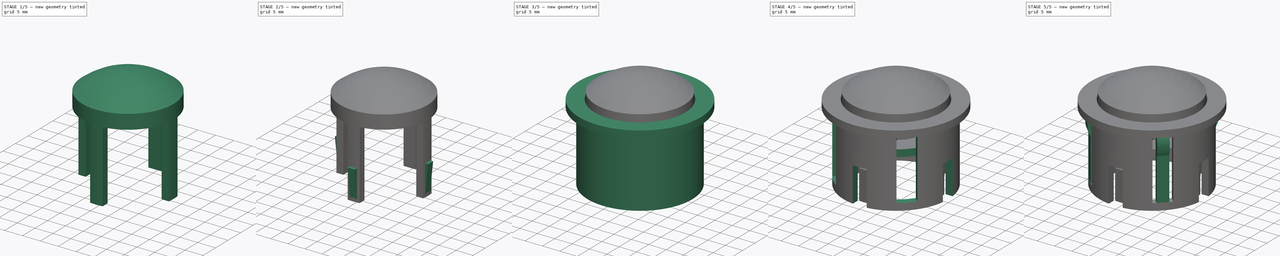
[diagram: build sequence overview — one tinted view per stage of 5, left to right]
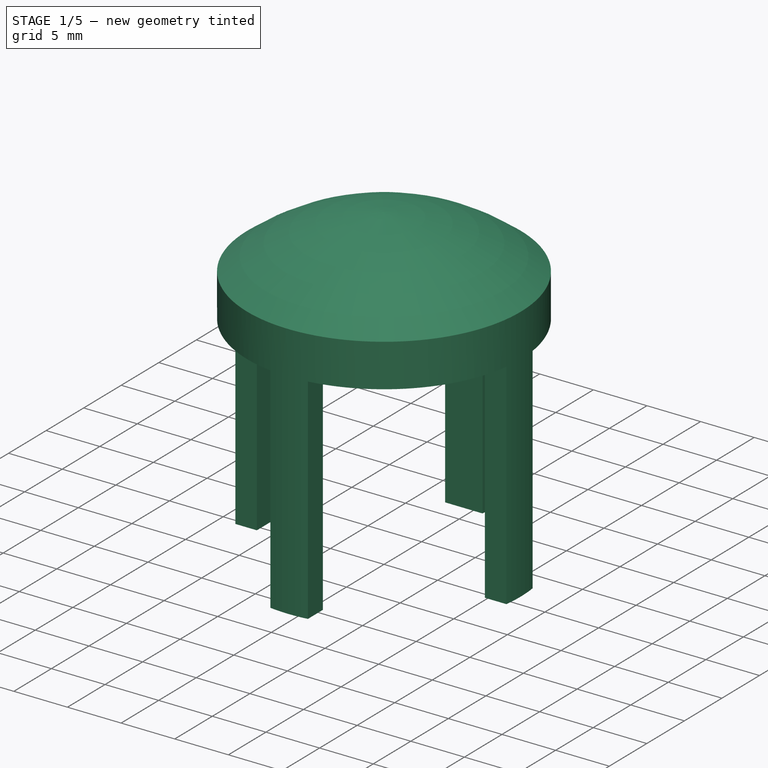
[diagram: stage 1 of 5 — iso view after this stage's code; geometry added in this stage tinted green]
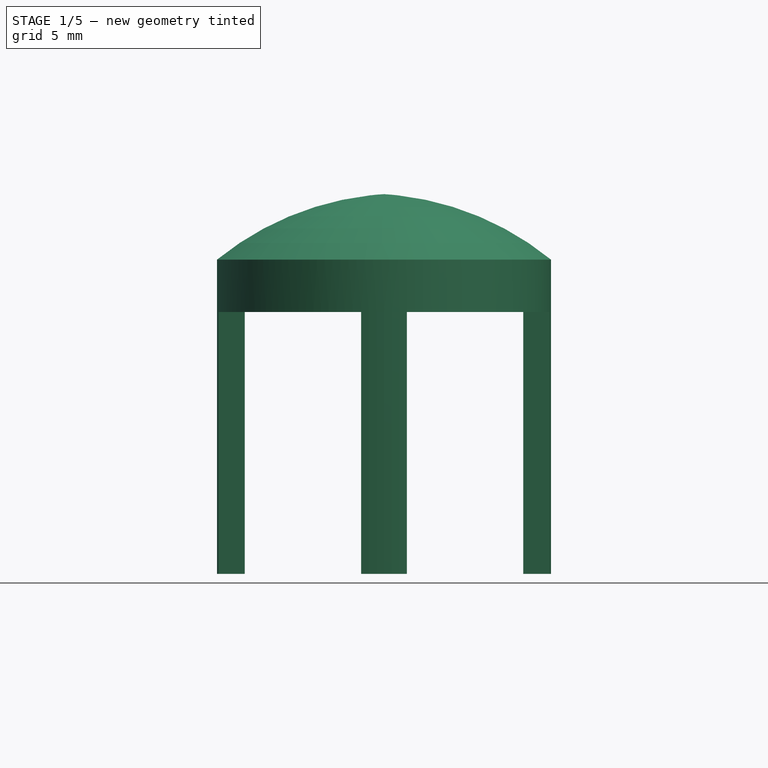
[diagram: stage 1 of 5 — front view after this stage's code; geometry added in this stage tinted green]
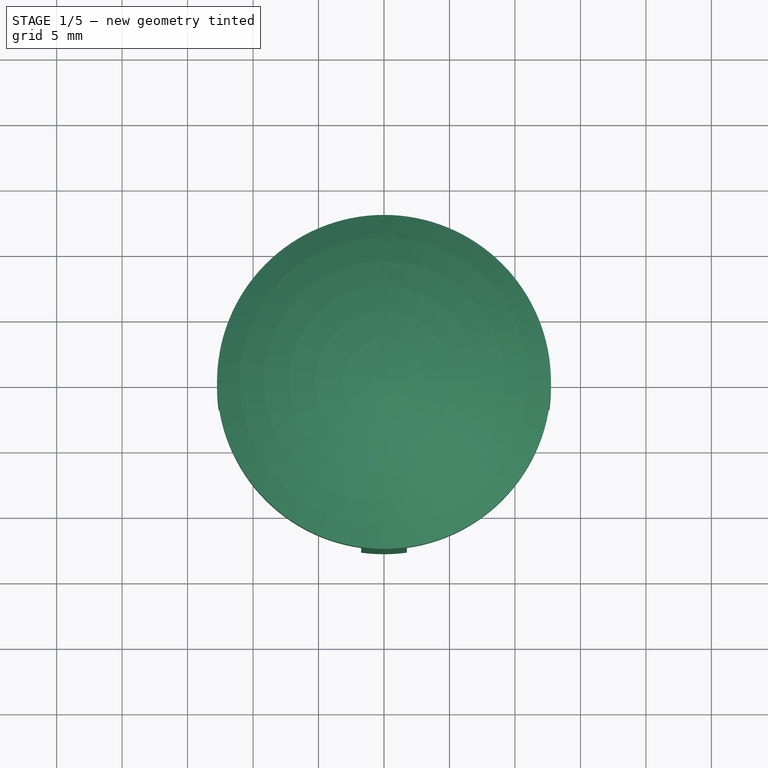
[diagram: stage 1 of 5 — top view after this stage's code; geometry added in this stage tinted green]
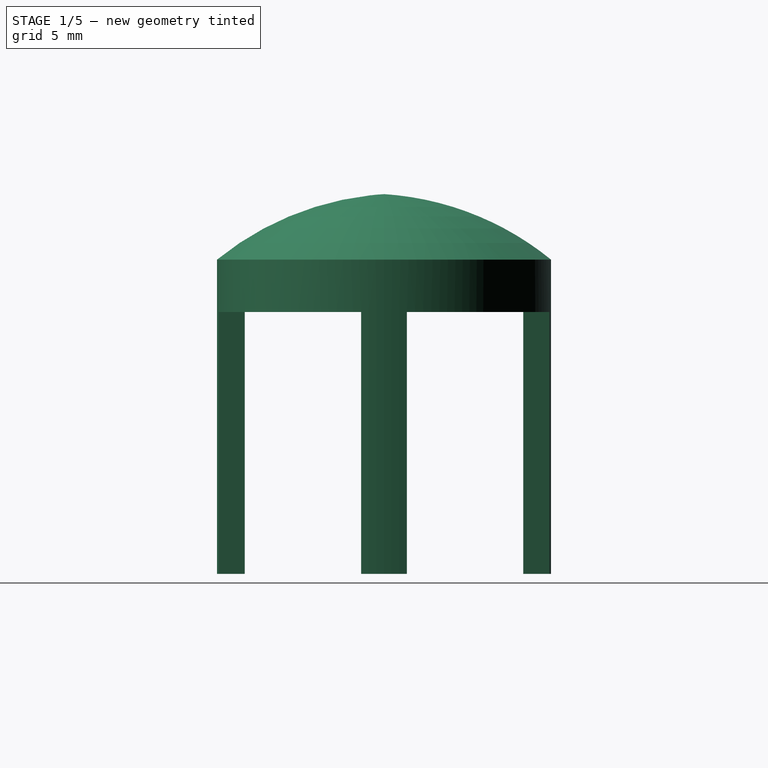
[diagram: stage 1 of 5 — right view after this stage's code; geometry added in this stage tinted green]
FCSTD DOCUMENT  (FreeCAD 0.21R33771 (Git))
Label: custom_button_for_PBS29B_updated3
License: All rights reserved
LicenseURL: https://en.wikipedia.org/wiki/All_rights_reserved
objects: Sketcher::SketchObject×16, PartDesign::Pad×10, PartDesign::Pocket×5, PartDesign::Body×2, PartDesign::Revolution×1
note: 50 computed .brp shape members not serialized (recipe doc carries the construction recipe); baked Part::Feature solids carry a one-line shape summary decoded from their .brp

FEATURE [Sketcher::SketchObject] Sketch006
  FullyConstrained = true
  MapMode = 5
  Support = -> [XY_Plane001]
  sketch-geometry (1):
    g0: Circle CenterX=0 CenterY=0 CenterZ=0 NormalX=0 NormalY=0 NormalZ=1 AngleXU=0 Radius=12.75
  constraints (2):
    c: Coincident(g0,g-1)
    c: Diameter(g0) = 25.5
FEATURE [PartDesign::Pad] Pad003
  Direction = (0,0,1)
  Length = 4
  Length2 = 10
  Profile = -> Sketch006
  ReferenceAxis = -> Sketch006 [N_Axis]
  Type = 0
FEATURE [Sketcher::SketchObject] Sketch007
  ExternalGeometry = -> [Pad003]
  FullyConstrained = true
  MapMode = 5
  Placement = pos=(0,0,0) rot=(1,0,0;3.14159rad)
  Support = -> [Pad003]
  sketch-geometry (16):
    g0: LineSegment StartX=-1.75 StartY=12.6293 StartZ=0 EndX=-1.75 EndY=10.6293 EndZ=0
    g1: LineSegment StartX=1.75 StartY=12.6293 StartZ=0 EndX=1.75 EndY=10.6293 EndZ=0
    g2: LineSegment StartX=-12.6293 StartY=1.75 StartZ=0 EndX=-10.6293 EndY=1.75 EndZ=0
    g3: LineSegment StartX=-12.6293 StartY=-1.75 StartZ=0 EndX=-10.6293 EndY=-1.75 EndZ=0
    g4: LineSegment StartX=12.6293 StartY=-1.75 StartZ=0 EndX=10.6293 EndY=-1.75 EndZ=0
    g5: LineSegment StartX=12.6293 StartY=1.75 StartZ=0 EndX=10.6293 EndY=1.75 EndZ=0
    g6: LineSegment StartX=-1.75 StartY=-12.6293 StartZ=0 EndX=-1.75 EndY=-10.6293 EndZ=0
    g7: LineSegment StartX=1.75 StartY=-12.6293 StartZ=0 EndX=1.75 EndY=-10.6293 EndZ=0
    g8: LineSegment StartX=-1.75 StartY=10.6293 StartZ=0 EndX=1.75 EndY=10.6293 EndZ=0
    g9: LineSegment StartX=-10.6293 StartY=1.75 StartZ=0 EndX=-10.6293 EndY=-1.75 EndZ=0
    g10: LineSegment StartX=-1.75 StartY=-10.6293 StartZ=0 EndX=1.75 EndY=-10.6293 EndZ=0
    g11: LineSegment StartX=10.6293 StartY=-1.75 StartZ=0 EndX=10.6293 EndY=1.75 EndZ=0
    g12: ArcOfCircle CenterX=-5.9e-15 CenterY=-7.54e-14 CenterZ=0 NormalX=0 NormalY=0 NormalZ=1 AngleXU=0 Radius=12.75 StartAngle=1.43311 EndAngle=1.70849
    g13: ArcOfCircle CenterX=-1.655e-13 CenterY=-1.5e-15 CenterZ=0 NormalX=0 NormalY=0 NormalZ=1 AngleXU=0 Radius=12.75 StartAngle=3.0039 EndAngle=3.27928
    g14: ArcOfCircle CenterX=-4e-15 CenterY=-5.6e-15 CenterZ=0 NormalX=0 NormalY=0 NormalZ=1 AngleXU=0 Radius=12.75 StartAngle=4.5747 EndAngle=4.85008
    g15: ArcOfCircle CenterX=0 CenterY=1.3927e-12 CenterZ=0 NormalX=0 NormalY=0 NormalZ=1 AngleXU=0 Radius=12.75 StartAngle=6.1455 EndAngle=6.42087
  constraints (48):
    c: PointOnObject(g0,g-3)
    c: Vertical(g0)
    c: Vertical(g1)
    c: PointOnObject(g2,g-3)
    c: PointOnObject(g4,g-3)
    c: Horizontal(g4)
    c: PointOnObject(g6,g-3)
    c: Horizontal(g2)
    c: Horizontal(g3)
    c: Horizontal(g5)
    c: Vertical(g7)
    c: Vertical(g6)
    c: Symmetric(g5,g4,g-1)
    c: Symmetric(g6,g7,g-2)
    c: Symmetric(g2,g3,g-1)
    c: Symmetric(g0,g1,g-2)
    c: Coincident(g8,g0)
    c: Coincident(g8,g1)
    c: Coincident(g9,g2)
    c: Coincident(g9,g3)
    c: Vertical(g9)
    c: Coincident(g10,g6)
    c: Coincident(g10,g7)
    c: Horizontal(g10)
    c: Coincident(g11,g4)
    c: Coincident(g11,g5)
    c: Horizontal(g8)
    c: Vertical(g11)
    c: Equal(g2,g0)
    c: Equal(g1,g5)
    c: Equal(g4,g7)
    c: Equal(g8,g9)
    c: Equal(g9,g10)
    c: Equal(g10,g11)
    c: DistanceY(g4,g5) = 3.5
    c: DistanceY(g1,g1) = 2
    c: Coincident(g12,g0)
    c: Coincident(g12,g1)
    c: Tangent(g12,g-3)
    c: Coincident(g13,g2)
    c: Coincident(g13,g3)
    c: Tangent(g13,g-3)
    c: Coincident(g14,g6)
    c: Coincident(g14,g7)
    c: Tangent(g14,g-3)
    c: Coincident(g15,g5)
    c: Coincident(g15,g4)
    c: Tangent(g15,g-3)
FEATURE [PartDesign::Pad] Pad004
  BaseFeature = -> Pad003
  Direction = (0,0,-1)
  Length = 20
  Length2 = 10
  Profile = -> Sketch007
  ReferenceAxis = -> Sketch007 [N_Axis]
  Type = 0
FEATURE [Sketcher::SketchObject] Sketch010
  FullyConstrained = false
  MapMode = 5
  Placement = pos=(0,0,0) rot=(0.57735,0.57735,0.57735;2.0944rad)
  Support = -> [YZ_Plane001]
  sketch-geometry (3):
    g0: LineSegment StartX=12.75 StartY=4 StartZ=0 EndX=0 EndY=4 EndZ=0
    g1: LineSegment StartX=-2e-16 StartY=4 StartZ=0 EndX=-2e-16 EndY=9 EndZ=0
    g2: ArcOfCircle CenterX=-1.4498 CenterY=-13.4532 CenterZ=0 NormalX=0 NormalY=0 NormalZ=1 AngleXU=0 Radius=22.5 StartAngle=0.887823 EndAngle=1.50632
  constraints (7):
    c: Coincident(g1,g0)
    c: PointOnObject(g1,g-2)
    c: Vertical(g1)
    c: DistanceY(g1,g1) = 5
    c: Coincident(g2,g1)
    c: Coincident(g2,g0)
    c: Diameter(g2) = 45
FEATURE [PartDesign::Revolution] Revolution
  Angle = 360
  Axis = (-2e-16,3e-16,1)
  Base = (0,0,0)
  BaseFeature = -> Pad004
  Profile = -> Sketch010
  ReferenceAxis = -> Sketch010 [V_Axis]
  Reversed = true
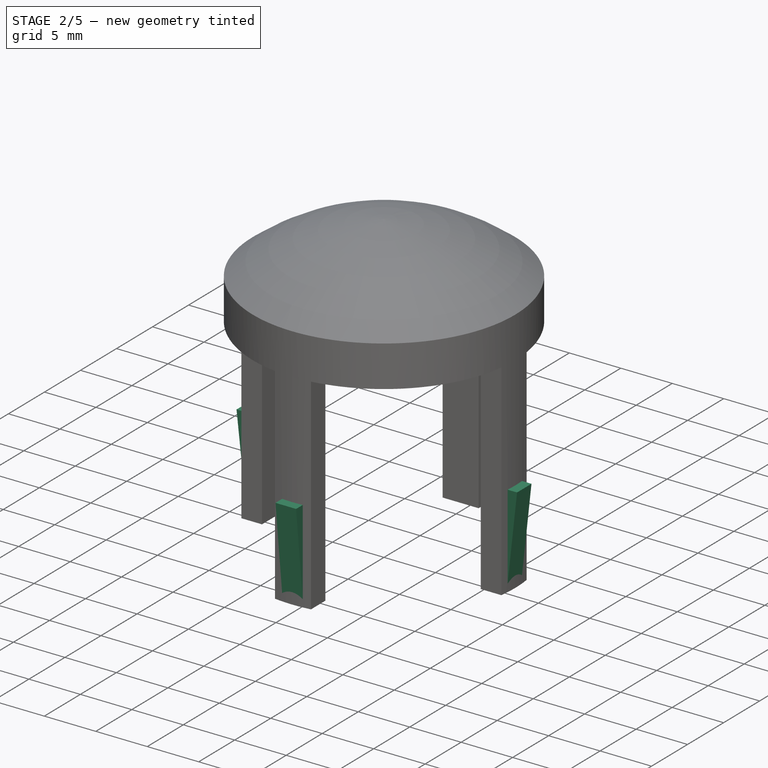
[diagram: stage 2 of 5 — iso view after this stage's code; geometry added in this stage tinted green]
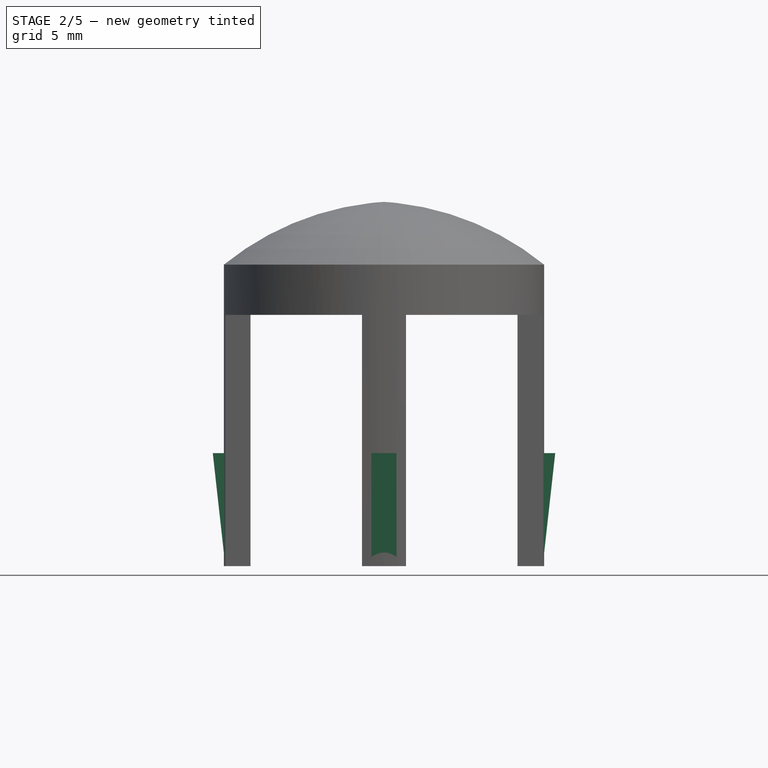
[diagram: stage 2 of 5 — front view after this stage's code; geometry added in this stage tinted green]
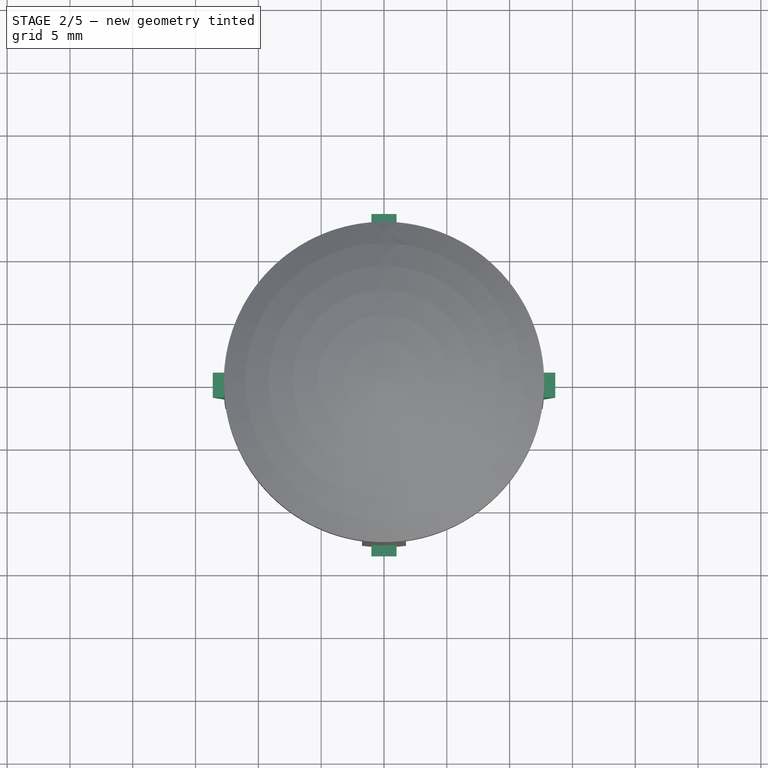
[diagram: stage 2 of 5 — top view after this stage's code; geometry added in this stage tinted green]
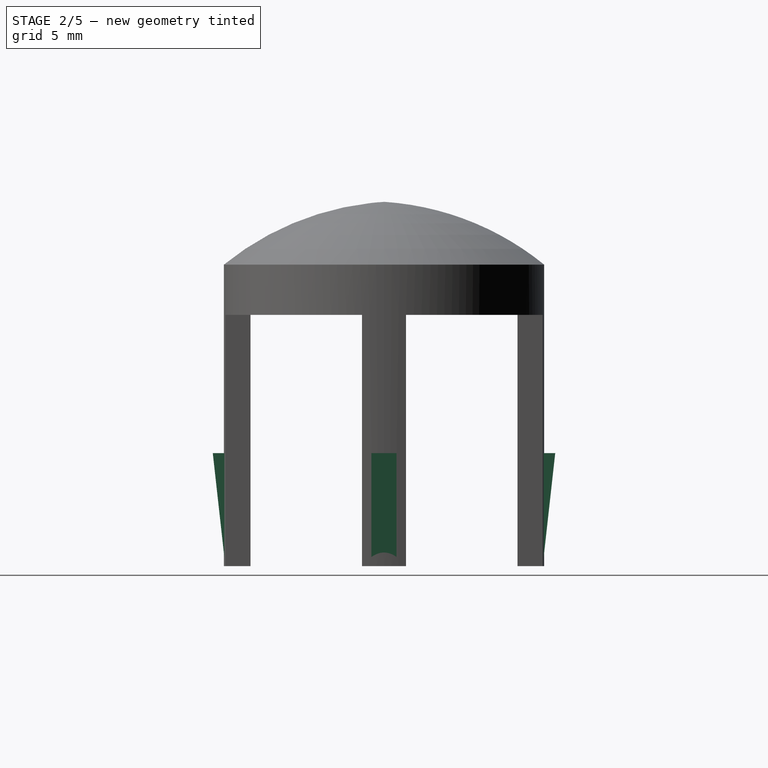
[diagram: stage 2 of 5 — right view after this stage's code; geometry added in this stage tinted green]
FEATURE [PartDesign::Body] Body  label="case"
  Group = -> [Sketch,Pad,Sketch012,Pad007,Sketch013,Pad008,Sketch014,Pocket,Sketch015,Pocket003,Sketch016,Pocket004,Sketch017,Pocket005,Sketch018,Pad009,Sketch019,Pad010,Sketch020,Pad011]
  Origin = -> Origin
  Tip = -> Pad011
FEATURE [Sketcher::SketchObject] Sketch021
  AttachmentOffset = pos=(0,0,-1.75) rot=(0,0,1;0rad)
  FullyConstrained = false
  MapMode = 5
  Placement = pos=(-1.3e-15,0,0) rot=(0.57735,0.57735,0.57735;2.0944rad)
  sketch-geometry (6):
    g0: LineSegment StartX=-12.6293 StartY=-20 StartZ=0 EndX=-12.6293 EndY=-11 EndZ=0
    g1: LineSegment StartX=12.6293 StartY=-20 StartZ=0 EndX=12.6293 EndY=-11 EndZ=0
    g2: LineSegment StartX=12.6293 StartY=-11 StartZ=0 EndX=13.6293 EndY=-11 EndZ=0
    g3: LineSegment StartX=-12.6293 StartY=-11 StartZ=0 EndX=-13.6293 EndY=-11 EndZ=0
    g4: LineSegment StartX=-13.6293 StartY=-11 StartZ=0 EndX=-12.6293 EndY=-20 EndZ=0
    g5: LineSegment StartX=13.6293 StartY=-11 StartZ=0 EndX=12.6293 EndY=-20 EndZ=0
  constraints (12):
    c: Coincident(g2,g1)
    c: Horizontal(g2)
    c: Coincident(g3,g0)
    c: Horizontal(g3)
    c: Coincident(g4,g3)
    c: Coincident(g4,g0)
    c: Coincident(g5,g2)
    c: Coincident(g5,g1)
    c: Equal(g3,g2)
    c: DistanceX(g3,g3) = 1
    c: Equal(g0,g1)
    c: DistanceY(g0,g0) = 9
FEATURE [PartDesign::Pad] Pad012
  BaseFeature = -> Revolution
  Direction = (1,0,0)
  Length = 2
  Length2 = 10
  Midplane = true
  Profile = -> Sketch021
  ReferenceAxis = -> Sketch021 [N_Axis]
  Type = 0
FEATURE [Sketcher::SketchObject] Sketch022
  AttachmentOffset = pos=(0,0,-1.75) rot=(0,0,1;0rad)
  ExternalGeometry = -> [Pad012]
  FullyConstrained = true
  MapMode = 5
  Placement = pos=(0,3.3e-15,-4e-16) rot=(1,0,0;1.5708rad)
  Support = -> [Pad012]
  sketch-geometry (6):
    g0: LineSegment StartX=-12.6293 StartY=-20 StartZ=0 EndX=-12.6293 EndY=-11 EndZ=0
    g1: LineSegment StartX=12.6293 StartY=-20 StartZ=0 EndX=12.6293 EndY=-11 EndZ=0
    g2: LineSegment StartX=12.6293 StartY=-11 StartZ=0 EndX=13.6293 EndY=-11 EndZ=0
    g3: LineSegment StartX=-12.6293 StartY=-11 StartZ=0 EndX=-13.6293 EndY=-11 EndZ=0
    g4: LineSegment StartX=-13.6293 StartY=-11 StartZ=0 EndX=-12.6293 EndY=-20 EndZ=0
    g5: LineSegment StartX=13.6293 StartY=-11 StartZ=0 EndX=12.6293 EndY=-20 EndZ=0
  constraints (16):
    c: Coincident(g0,g-4)
    c: PointOnObject(g0,g-4)
    c: Coincident(g1,g-3)
    c: PointOnObject(g1,g-3)
    c: Coincident(g2,g1)
    c: Coincident(g3,g0)
    c: Horizontal(g3)
    c: Coincident(g4,g3)
    c: Coincident(g4,g0)
    c: Coincident(g5,g2)
    c: Coincident(g5,g1)
    c: Horizontal(g2)
    c: Equal(g3,g2)
    c: DistanceX(g3,g3) = 1
    c: Equal(g0,g1)
    c: DistanceY(g1,g1) = 9
FEATURE [PartDesign::Pad] Pad013
  BaseFeature = -> Pad012
  Direction = (0,-1,2e-16)
  Length = 2
  Length2 = 10
  Midplane = true
  Profile = -> Sketch022
  ReferenceAxis = -> Sketch022 [N_Axis]
  Type = 0
FEATURE [PartDesign::Pocket] Pocket006
  BaseFeature = -> Pad013
  Direction = (0,0,1)
  Length = 6
  Length2 = 5
  Profile = -> Sketch011
  ReferenceAxis = -> Sketch011 [N_Axis]
  Type = 0
FEATURE [PartDesign::Body] Body001  label="cap"
  Group = -> [Sketch006,Pad003,Sketch007,Pad004,Sketch010,Revolution,Sketch011,Sketch021,Pad012,Sketch022,Pad013,Pocket006]
  Origin = -> Origin001
  Placement = pos=(0,0,26) rot=(0,0,1;0rad)
  Tip = -> Pocket006
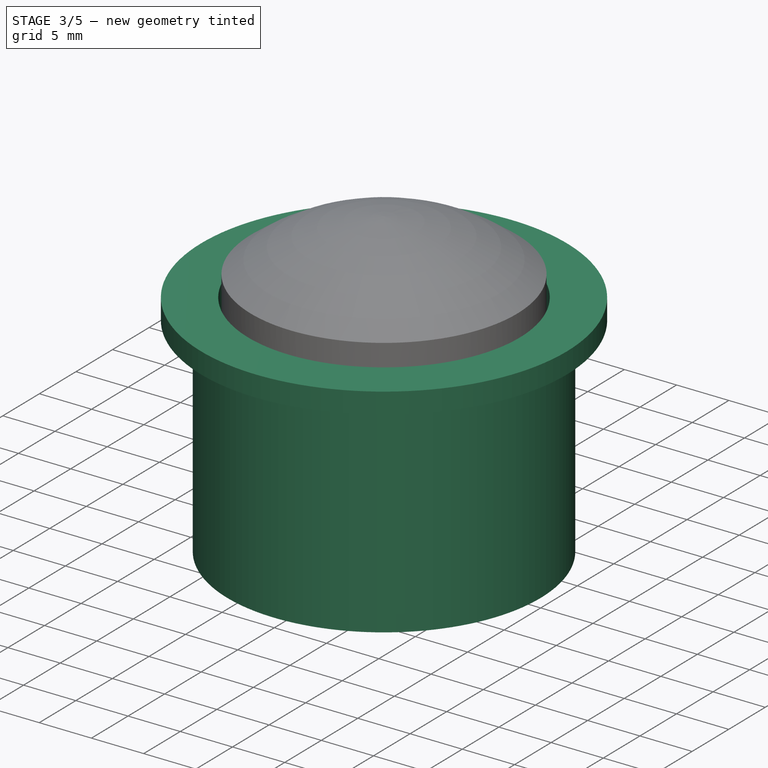
[diagram: stage 3 of 5 — iso view after this stage's code; geometry added in this stage tinted green]
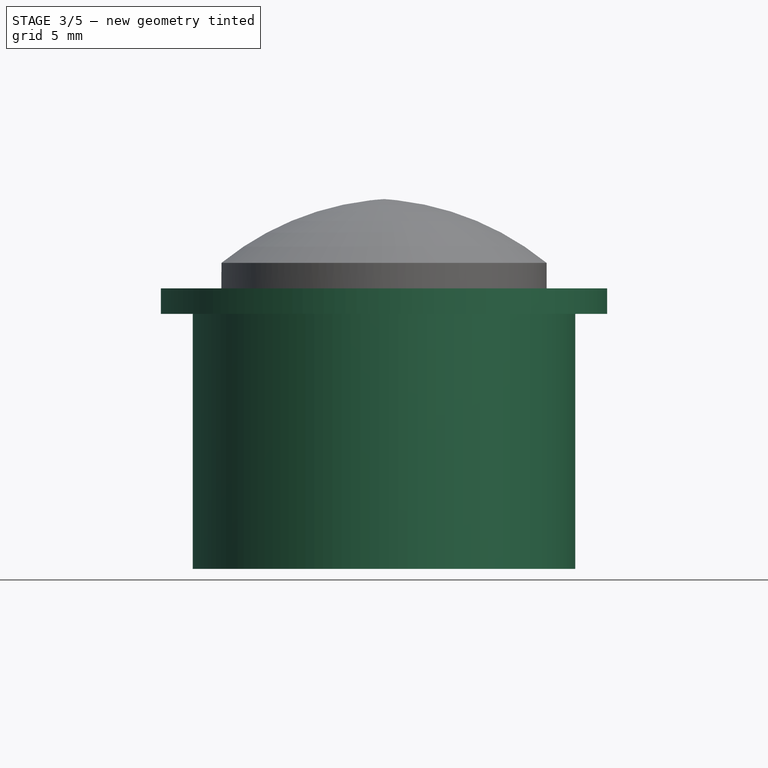
[diagram: stage 3 of 5 — front view after this stage's code; geometry added in this stage tinted green]
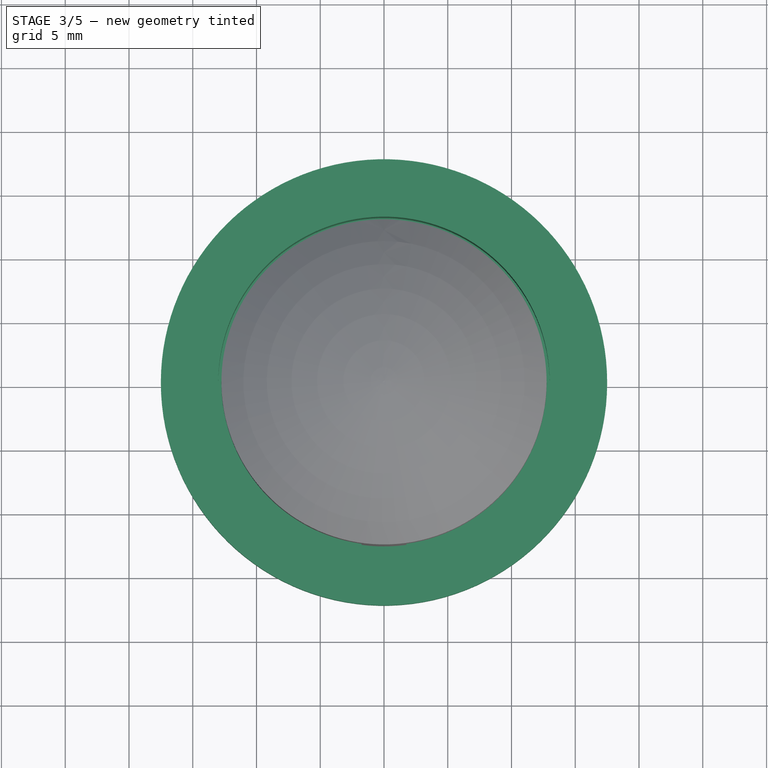
[diagram: stage 3 of 5 — top view after this stage's code; geometry added in this stage tinted green]
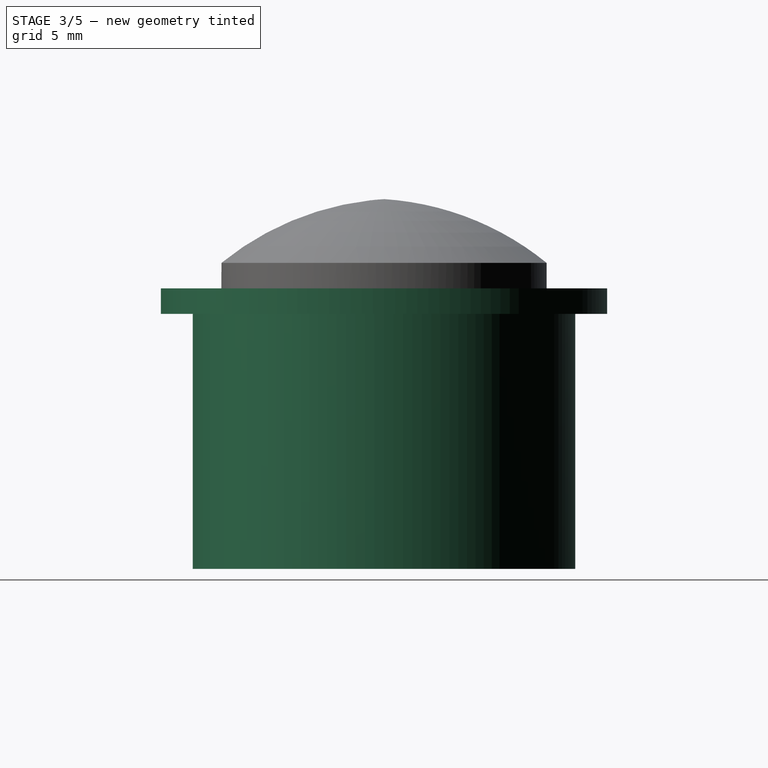
[diagram: stage 3 of 5 — right view after this stage's code; geometry added in this stage tinted green]
FEATURE [Sketcher::SketchObject] Sketch
  FullyConstrained = true
  MapMode = 5
  Support = -> [XY_Plane]
  sketch-geometry (2):
    g0: Circle CenterX=0 CenterY=0 CenterZ=0 NormalX=0 NormalY=0 NormalZ=1 AngleXU=0 Radius=17.5
    g1: Circle CenterX=0 CenterY=0 CenterZ=0 NormalX=0 NormalY=0 NormalZ=1 AngleXU=0 Radius=13
  constraints (4):
    c: Coincident(g0,g-1)
    c: Diameter(g0) = 35
    c: Coincident(g1,g0)
    c: Diameter(g1) = 26
FEATURE [PartDesign::Pad] Pad
  Direction = (0,0,1)
  Length = 2
  Length2 = 10
  Profile = -> Sketch
  ReferenceAxis = -> Sketch [N_Axis]
  Type = 0
FEATURE [Sketcher::SketchObject] Sketch011
  ExternalGeometry = -> [Revolution]
  FullyConstrained = true
  MapMode = 5
  Placement = pos=(0,0,0) rot=(1,0,0;3.14159rad)
  Support = -> [Revolution]
  sketch-geometry (1):
    g0: Circle CenterX=0 CenterY=0 CenterZ=0 NormalX=0 NormalY=0 NormalZ=1 AngleXU=0 Radius=3
  constraints (2):
    c: Coincident(g0,g-3)
    c: Diameter(g0) = 6
FEATURE [Sketcher::SketchObject] Sketch012
  ExternalGeometry = -> [Pad]
  FullyConstrained = true
  MapMode = 5
  Placement = pos=(0,0,0) rot=(1,0,0;3.14159rad)
  Support = -> [Pad]
  sketch-geometry (2):
    g0: Circle CenterX=0 CenterY=0 CenterZ=0 NormalX=0 NormalY=0 NormalZ=1 AngleXU=0 Radius=13
    g1: Circle CenterX=0 CenterY=0 CenterZ=0 NormalX=0 NormalY=0 NormalZ=1 AngleXU=0 Radius=15
  constraints (4):
    c: Coincident(g0,g-3)
    c: Coincident(g1,g0)
    c: Diameter(g1) = 30
    c: Diameter(g0) = 26
FEATURE [PartDesign::Pad] Pad007
  BaseFeature = -> Pad
  Direction = (0,0,-1)
  Length = 20
  Length2 = 10
  Profile = -> Sketch012
  ReferenceAxis = -> Sketch012 [N_Axis]
  Type = 0
FEATURE [Sketcher::SketchObject] Sketch013
  AttachmentOffset = pos=(0,0,-9) rot=(0,0,1;0rad)
  ExternalGeometry = -> [Pad007]
  FullyConstrained = true
  MapMode = 5
  Placement = pos=(0,0,-7) rot=(0,0,1;0rad)
  Support = -> [Pad007]
  sketch-geometry (1):
    g0: Circle CenterX=0 CenterY=0 CenterZ=0 NormalX=0 NormalY=0 NormalZ=1 AngleXU=0 Radius=13
  constraints (2):
    c: Coincident(g0,g-3)
    c: Tangent(g0,g-3)
FEATURE [PartDesign::Pad] Pad008
  BaseFeature = -> Pad007
  Direction = (0,0,1)
  Length = 2
  Length2 = 10
  Profile = -> Sketch013
  ReferenceAxis = -> Sketch013 [N_Axis]
  Type = 0
FEATURE [Sketcher::SketchObject] Sketch014
  FullyConstrained = true
  MapMode = 5
  Placement = pos=(0,0,-5) rot=(0,0,1;0rad)
  Support = -> [Pad008]
  sketch-geometry (4):
    g0: LineSegment StartX=-3.32603 StartY=7 StartZ=0 EndX=3.32603 EndY=7 EndZ=0
    g1: LineSegment StartX=-3.32603 StartY=-7 StartZ=0 EndX=3.32603 EndY=-7 EndZ=0
    g2: ArcOfCircle CenterX=-4e-16 CenterY=-3e-16 CenterZ=0 NormalX=0 NormalY=0 NormalZ=1 AngleXU=0 Radius=7.75 StartAngle=2.01437 EndAngle=4.26882
    g3: ArcOfCircle CenterX=-4e-16 CenterY=-3e-16 CenterZ=0 NormalX=0 NormalY=0 NormalZ=1 AngleXU=0 Radius=7.75 StartAngle=5.15596 EndAngle=7.41041
  constraints (11):
    c: Coincident(g2,g0)
    c: Coincident(g2,g1)
    c: Coincident(g3,g0)
    c: Coincident(g3,g1)
    c: Symmetric(g0,g0,g-2)
    c: Symmetric(g1,g1,g-2)
    c: Symmetric(g0,g1,g-1)
    c: DistanceY(g1,g0) = 14
    c: Equal(g2,g3)
    c: Diameter(g2) = 15.5
    c: Coincident(g3,g2)
FEATURE [PartDesign::Pocket] Pocket
  BaseFeature = -> Pad008
  Direction = (0,0,-1)
  Length = 2
  Length2 = 5
  Profile = -> Sketch014
  ReferenceAxis = -> Sketch014 [N_Axis]
  Type = 0
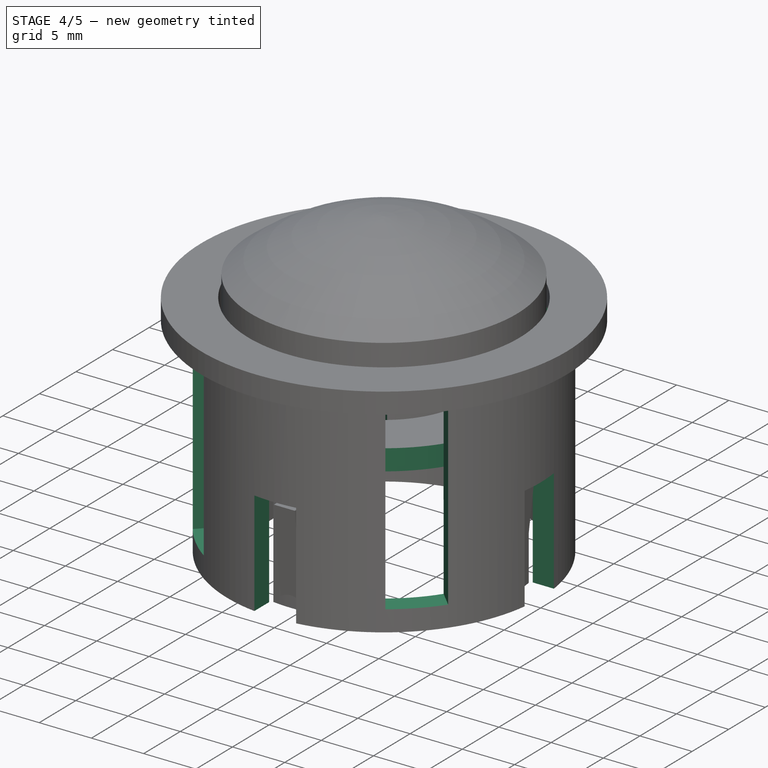
[diagram: stage 4 of 5 — iso view after this stage's code; geometry added in this stage tinted green]
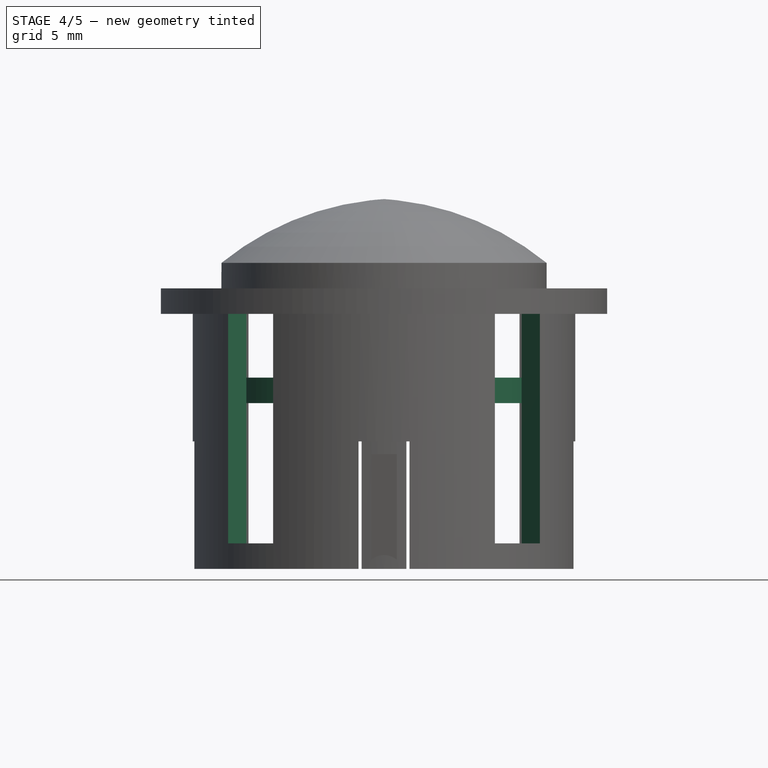
[diagram: stage 4 of 5 — front view after this stage's code; geometry added in this stage tinted green]
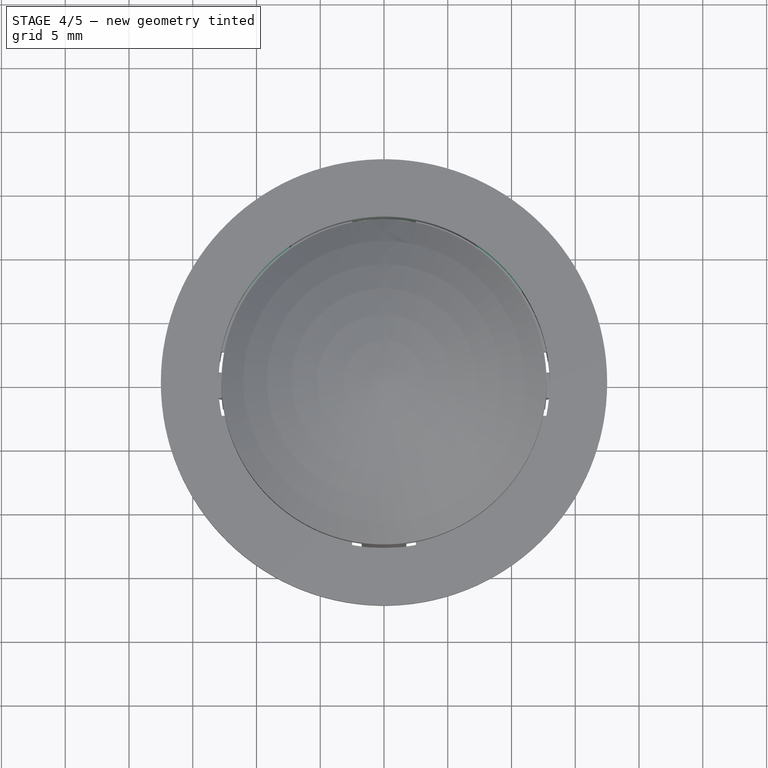
[diagram: stage 4 of 5 — top view after this stage's code; geometry added in this stage tinted green]
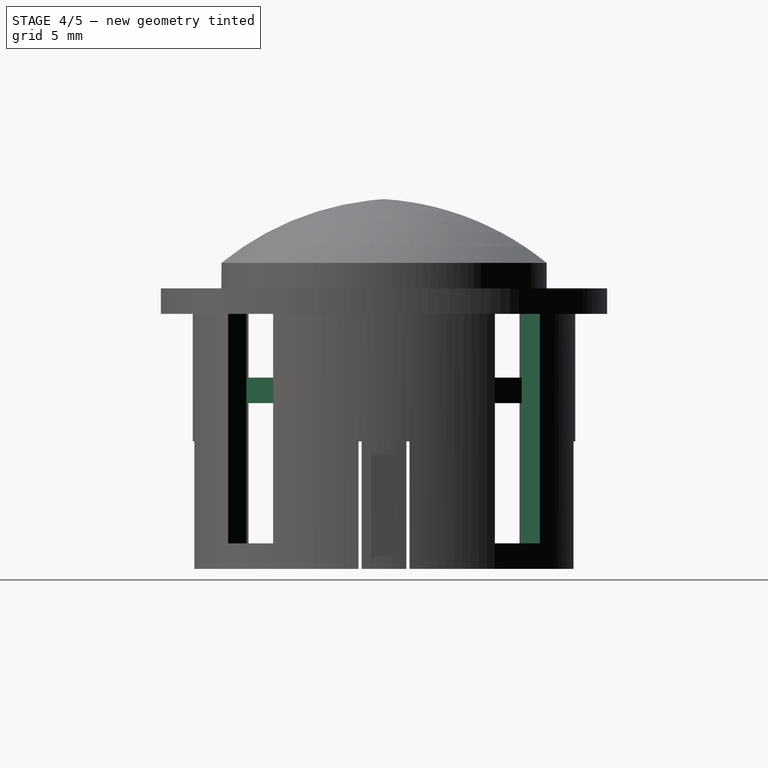
[diagram: stage 4 of 5 — right view after this stage's code; geometry added in this stage tinted green]
FEATURE [Sketcher::SketchObject] Sketch015
  ExternalGeometry = -> [Pocket]
  FullyConstrained = true
  MapMode = 5
  Placement = pos=(0,0,-20) rot=(1,0,0;3.14159rad)
  Support = -> [Pocket]
  sketch-geometry (16):
    g0: LineSegment StartX=-2 StartY=-12.8452 StartZ=0 EndX=-2 EndY=-14.8661 EndZ=0
    g1: LineSegment StartX=2 StartY=-12.8452 StartZ=0 EndX=2 EndY=-14.8661 EndZ=0
    g2: LineSegment StartX=-14.8661 StartY=2 StartZ=0 EndX=-12.8452 EndY=2 EndZ=0
    g3: LineSegment StartX=-14.8661 StartY=-2 StartZ=0 EndX=-12.8452 EndY=-2 EndZ=0
    g4: LineSegment StartX=-2 StartY=14.8661 StartZ=0 EndX=-2 EndY=12.8452 EndZ=0
    g5: LineSegment StartX=2 StartY=14.8661 StartZ=0 EndX=2 EndY=12.8452 EndZ=0
    g6: LineSegment StartX=12.8452 StartY=2 StartZ=0 EndX=14.8661 EndY=2 EndZ=0
    g7: LineSegment StartX=12.8452 StartY=-2 StartZ=0 EndX=14.8661 EndY=-2 EndZ=0
    g8: ArcOfCircle CenterX=7e-16 CenterY=1.67e-13 CenterZ=0 NormalX=0 NormalY=0 NormalZ=1 AngleXU=0 Radius=15 StartAngle=1.43706 EndAngle=1.70453
    g9: ArcOfCircle CenterX=7e-16 CenterY=-8.62e-14 CenterZ=0 NormalX=0 NormalY=0 NormalZ=1 AngleXU=0 Radius=13 StartAngle=1.41634 EndAngle=1.72526
    g10: ArcOfCircle CenterX=2.917e-13 CenterY=3.8e-15 CenterZ=0 NormalX=0 NormalY=0 NormalZ=1 AngleXU=0 Radius=15 StartAngle=6.14945 EndAngle=6.41692
    g11: ArcOfCircle CenterX=1.347e-13 CenterY=6.1e-15 CenterZ=0 NormalX=0 NormalY=0 NormalZ=1 AngleXU=0 Radius=13 StartAngle=6.12873 EndAngle=6.43764
    g12: ArcOfCircle CenterX=-6.79e-14 CenterY=-1.5e-15 CenterZ=0 NormalX=0 NormalY=0 NormalZ=1 AngleXU=0 Radius=13 StartAngle=2.98713 EndAngle=3.29605
    g13: ArcOfCircle CenterX=5e-14 CenterY=1.3e-15 CenterZ=0 NormalX=0 NormalY=0 NormalZ=1 AngleXU=0 Radius=15 StartAngle=3.00786 EndAngle=3.27532
    g14: ArcOfCircle CenterX=-3.3e-15 CenterY=-8.5e-15 CenterZ=0 NormalX=0 NormalY=0 NormalZ=1 AngleXU=0 Radius=13 StartAngle=4.55793 EndAngle=4.86685
    g15: ArcOfCircle CenterX=-5.9e-15 CenterY=0 CenterZ=0 NormalX=0 NormalY=0 NormalZ=1 AngleXU=0 Radius=15 StartAngle=4.57866 EndAngle=4.84612
  constraints (52):
    c: PointOnObject(g0,g-4)
    c: PointOnObject(g0,g-3)
    c: Vertical(g0)
    c: PointOnObject(g1,g-3)
    c: Vertical(g1)
    c: PointOnObject(g2,g-3)
    c: PointOnObject(g2,g-4)
    c: Horizontal(g2)
    c: PointOnObject(g3,g-3)
    c: Horizontal(g3)
    c: PointOnObject(g4,g-3)
    c: PointOnObject(g4,g-4)
    c: Vertical(g4)
    c: PointOnObject(g5,g-3)
    c: PointOnObject(g6,g-4)
    c: PointOnObject(g7,g-4)
    c: PointOnObject(g7,g-3)
    c: Horizontal(g7)
    c: Horizontal(g6)
    c: Vertical(g5)
    c: Equal(g5,g2)
    c: Equal(g3,g0)
    c: Equal(g1,g7)
    c: Symmetric(g4,g5,g-2)
    c: Symmetric(g2,g3,g-1)
    c: Symmetric(g6,g7,g-1)
    c: Symmetric(g1,g0,g-2)
    c: DistanceX(g0,g1) = 4
    c: Coincident(g8,g4)
    c: Coincident(g8,g5)
    c: Tangent(g8,g-3)
    c: Coincident(g9,g4)
    c: Coincident(g9,g5)
    c: Tangent(g9,g-4)
    c: Coincident(g10,g6)
    c: Coincident(g10,g7)
    c: Tangent(g10,g-3)
    c: Coincident(g11,g6)
    c: Coincident(g11,g7)
    c: Tangent(g11,g-4)
    c: Coincident(g12,g2)
    c: Coincident(g12,g3)
    c: Tangent(g12,g-4)
    c: Coincident(g13,g2)
    c: Coincident(g13,g3)
    c: Tangent(g13,g-3)
    c: Coincident(g14,g0)
    c: Coincident(g14,g1)
    c: Tangent(g14,g-4)
    c: Coincident(g15,g0)
    c: Coincident(g15,g1)
    c: Tangent(g15,g-3)
FEATURE [PartDesign::Pocket] Pocket003
  BaseFeature = -> Pocket
  Direction = (0,0,1)
  Length = 10
  Length2 = 5
  Profile = -> Sketch015
  ReferenceAxis = -> Sketch015 [N_Axis]
  Type = 0
FEATURE [Sketcher::SketchObject] Sketch016
  ExternalGeometry = -> [Pocket003]
  FullyConstrained = true
  MapMode = 5
  Placement = pos=(0,0,-5) rot=(0,0,1;0rad)
  Support = -> [Pocket003]
  sketch-geometry (16):
    g0: LineSegment StartX=-12.7574 StartY=2.5 StartZ=0 EndX=-9.25735 EndY=2.5 EndZ=0
    g1: LineSegment StartX=-9.25735 StartY=2.5 StartZ=0 EndX=-9.25735 EndY=-2.5 EndZ=0
    g2: LineSegment StartX=-9.25735 StartY=-2.5 StartZ=0 EndX=-12.7574 EndY=-2.5 EndZ=0
    g3: LineSegment StartX=-2.5 StartY=12.7574 StartZ=0 EndX=-2.5 EndY=9.25735 EndZ=0
    g4: LineSegment StartX=-2.5 StartY=9.25735 StartZ=0 EndX=2.5 EndY=9.25735 EndZ=0
    g5: LineSegment StartX=2.5 StartY=9.25735 StartZ=0 EndX=2.5 EndY=12.7574 EndZ=0
    g6: LineSegment StartX=12.7574 StartY=2.5 StartZ=0 EndX=9.25735 EndY=2.5 EndZ=0
    g7: LineSegment StartX=9.25735 StartY=2.5 StartZ=0 EndX=9.25735 EndY=-2.5 EndZ=0
    g8: LineSegment StartX=9.25735 StartY=-2.5 StartZ=0 EndX=12.7574 EndY=-2.5 EndZ=0
    g9: LineSegment StartX=-2.5 StartY=-12.7574 StartZ=0 EndX=-2.5 EndY=-9.25735 EndZ=0
    g10: LineSegment StartX=-2.5 StartY=-9.25735 StartZ=0 EndX=2.5 EndY=-9.25735 EndZ=0
    g11: LineSegment StartX=2.5 StartY=-9.25735 StartZ=0 EndX=2.5 EndY=-12.7574 EndZ=0
    g12: ArcOfCircle CenterX=-1.9e-15 CenterY=6.58e-14 CenterZ=0 NormalX=0 NormalY=0 NormalZ=1 AngleXU=0 Radius=13 StartAngle=1.37728 EndAngle=1.76431
    g13: ArcOfCircle CenterX=1.2e-14 CenterY=0 CenterZ=0 NormalX=0 NormalY=0 NormalZ=1 AngleXU=0 Radius=13 StartAngle=2.94808 EndAngle=3.33511
    g14: ArcOfCircle CenterX=-5.3e-15 CenterY=-1.3e-15 CenterZ=0 NormalX=0 NormalY=0 NormalZ=1 AngleXU=0 Radius=13 StartAngle=6.08967 EndAngle=6.4767
    g15: ArcOfCircle CenterX=-5.068e-13 CenterY=0 CenterZ=0 NormalX=0 NormalY=0 NormalZ=1 AngleXU=0 Radius=13 StartAngle=4.51888 EndAngle=4.9059
  constraints (49):
    c: PointOnObject(g0,g-3)
    c: Horizontal(g0)
    c: Coincident(g1,g0)
    c: Coincident(g2,g1)
    c: Horizontal(g2)
    c: PointOnObject(g3,g-3)
    c: Vertical(g3)
    c: Coincident(g4,g3)
    c: Horizontal(g4)
    c: Coincident(g5,g4)
    c: PointOnObject(g5,g-3)
    c: PointOnObject(g6,g-3)
    c: Horizontal(g6)
    c: Coincident(g7,g6)
    c: Coincident(g8,g7)
    c: PointOnObject(g8,g-3)
    c: PointOnObject(g9,g-3)
    c: Vertical(g9)
    c: Coincident(g10,g9)
    c: Coincident(g11,g10)
    c: PointOnObject(g11,g-3)
    c: Vertical(g11)
    c: PointOnObject(g2,g-3)
    c: Horizontal(g8)
    c: Vertical(g5)
    c: Equal(g3,g5)
    c: Equal(g5,g0)
    c: Equal(g2,g6)
    c: Equal(g8,g9)
    c: Distance(g5) = 3.5
    c: Symmetric(g0,g1,g-1)
    c: Symmetric(g6,g7,g-1)
    c: Symmetric(g9,g10,g-2)
    c: Equal(g4,g1)
    c: Equal(g1,g10)
    c: Equal(g10,g7)
    c: Distance(g4) = 5
    c: Coincident(g12,g3)
    c: Coincident(g12,g5)
    c: Tangent(g12,g-3)
    c: Coincident(g13,g0)
    c: Coincident(g13,g2)
    c: Tangent(g13,g-3)
    c: Coincident(g14,g6)
    c: Coincident(g14,g8)
    c: Tangent(g14,g-3)
    c: Coincident(g15,g9)
    c: Coincident(g15,g11)
    c: Tangent(g15,g-3)
FEATURE [PartDesign::Pocket] Pocket004
  BaseFeature = -> Pocket003
  Direction = (0,0,-1)
  Length = 2
  Length2 = 5
  Profile = -> Sketch016
  ReferenceAxis = -> Sketch016 [N_Axis]
  Type = 0
FEATURE [Sketcher::SketchObject] Sketch017
  AttachmentOffset = pos=(0,0,-2) rot=(0,0,1;0rad)
  ExternalGeometry = -> [Pocket004]
  FullyConstrained = true
  MapMode = 5
  Placement = pos=(0,0,-18) rot=(1,0,0;3.14159rad)
  Support = -> [Pocket004]
  sketch-geometry (16):
    g0: LineSegment StartX=-12.226 StartY=8.69048 StartZ=0 EndX=-10.7886 EndY=7.25304 EndZ=0
    g1: LineSegment StartX=-8.69048 StartY=12.226 StartZ=0 EndX=-7.25304 EndY=10.7886 EndZ=0
    g2: LineSegment StartX=10.7886 StartY=-7.25304 StartZ=0 EndX=12.226 EndY=-8.69048 EndZ=0
    g3: LineSegment StartX=7.25304 StartY=-10.7886 StartZ=0 EndX=8.69048 EndY=-12.226 EndZ=0
    g4: LineSegment StartX=-12.226 StartY=-8.69048 StartZ=0 EndX=-10.7886 EndY=-7.25304 EndZ=0
    g5: LineSegment StartX=-8.69048 StartY=-12.226 StartZ=0 EndX=-7.25304 EndY=-10.7886 EndZ=0
    g6: LineSegment StartX=7.25304 StartY=10.7886 StartZ=0 EndX=8.69048 EndY=12.226 EndZ=0
    g7: LineSegment StartX=10.7886 StartY=7.25304 StartZ=0 EndX=12.226 EndY=8.69048 EndZ=0
    g8: ArcOfCircle CenterX=1.368e-13 CenterY=1.234e-13 CenterZ=0 NormalX=0 NormalY=0 NormalZ=1 AngleXU=0 Radius=15 StartAngle=3.75954 EndAngle=4.09444
    g9: ArcOfCircle CenterX=4.88e-14 CenterY=4.39e-14 CenterZ=0 NormalX=0 NormalY=0 NormalZ=1 AngleXU=0 Radius=13 StartAngle=3.73348 EndAngle=4.1205
    g10: ArcOfCircle CenterX=-2.38e-14 CenterY=2.04e-14 CenterZ=0 NormalX=0 NormalY=0 NormalZ=1 AngleXU=0 Radius=13 StartAngle=5.30427 EndAngle=5.6913
    g11: ArcOfCircle CenterX=2.43e-14 CenterY=-2.26e-14 CenterZ=0 NormalX=0 NormalY=0 NormalZ=1 AngleXU=0 Radius=15 StartAngle=5.33034 EndAngle=5.66524
    g12: ArcOfCircle CenterX=-2.3e-15 CenterY=5e-15 CenterZ=0 NormalX=0 NormalY=0 NormalZ=1 AngleXU=0 Radius=15 StartAngle=0.61795 EndAngle=0.952846
    g13: ArcOfCircle CenterX=-6.5e-15 CenterY=0 CenterZ=0 NormalX=0 NormalY=0 NormalZ=1 AngleXU=0 Radius=13 StartAngle=0.591885 EndAngle=0.978911
    g14: ArcOfCircle CenterX=5.2e-15 CenterY=-1.14e-14 CenterZ=0 NormalX=0 NormalY=0 NormalZ=1 AngleXU=0 Radius=15 StartAngle=2.18875 EndAngle=2.52364
    g15: ArcOfCircle CenterX=-2.1187e-12 CenterY=0 CenterZ=0 NormalX=0 NormalY=0 NormalZ=1 AngleXU=0 Radius=13 StartAngle=2.16268 EndAngle=2.54971
  constraints (56):
    c: PointOnObject(g0,g-8)
    c: PointOnObject(g0,g-7)
    c: PointOnObject(g1,g-8)
    c: PointOnObject(g1,g-7)
    c: PointOnObject(g2,g-9)
    c: PointOnObject(g2,g-10)
    c: PointOnObject(g3,g-9)
    c: PointOnObject(g3,g-10)
    c: PointOnObject(g4,g-6)
    c: PointOnObject(g4,g-5)
    c: PointOnObject(g5,g-6)
    c: PointOnObject(g5,g-5)
    c: PointOnObject(g6,g-3)
    c: PointOnObject(g6,g-4)
    c: PointOnObject(g7,g-3)
    c: PointOnObject(g7,g-4)
    c: Distance(g1,g0) = 5
    c: Distance(g6,g7) = 5
    c: Distance(g2,g3) = 5
    c: Distance(g4,g5) = 5
    c: Parallel(g2,g3)
    c: Parallel(g3,g1)
    c: Parallel(g1,g0)
    c: Angle(g1,g-1) = 0.785398
    c: Equal(g2,g3)
    c: Equal(g3,g1)
    c: Parallel(g6,g7)
    c: Parallel(g7,g4)
    c: Parallel(g4,g5)
    c: Angle(g4,g-1) = 2.35619
    c: Equal(g5,g4)
    c: Equal(g4,g6)
    c: Coincident(g8,g4)
    c: Coincident(g8,g5)
    c: Tangent(g8,g-6)
    c: Coincident(g9,g5)
    c: Coincident(g9,g4)
    c: Tangent(g9,g-5)
    c: Coincident(g10,g2)
    c: Coincident(g10,g3)
    c: Tangent(g10,g-9)
    c: Coincident(g11,g2)
    c: Coincident(g11,g3)
    c: Tangent(g11,g-10)
    c: Coincident(g12,g6)
    c: Coincident(g12,g7)
    c: Tangent(g12,g-4)
    c: Coincident(g13,g6)
    c: Coincident(g13,g7)
    c: Tangent(g13,g-3)
    c: Coincident(g14,g1)
    c: Coincident(g14,g0)
    c: Tangent(g14,g-8)
    c: Coincident(g15,g0)
    c: Coincident(g15,g1)
    c: Tangent(g15,g-7)
FEATURE [PartDesign::Pocket] Pocket005
  BaseFeature = -> Pocket004
  Direction = (0,0,1)
  Length = 18
  Length2 = 5
  Profile = -> Sketch017
  ReferenceAxis = -> Sketch017 [N_Axis]
  Type = 0
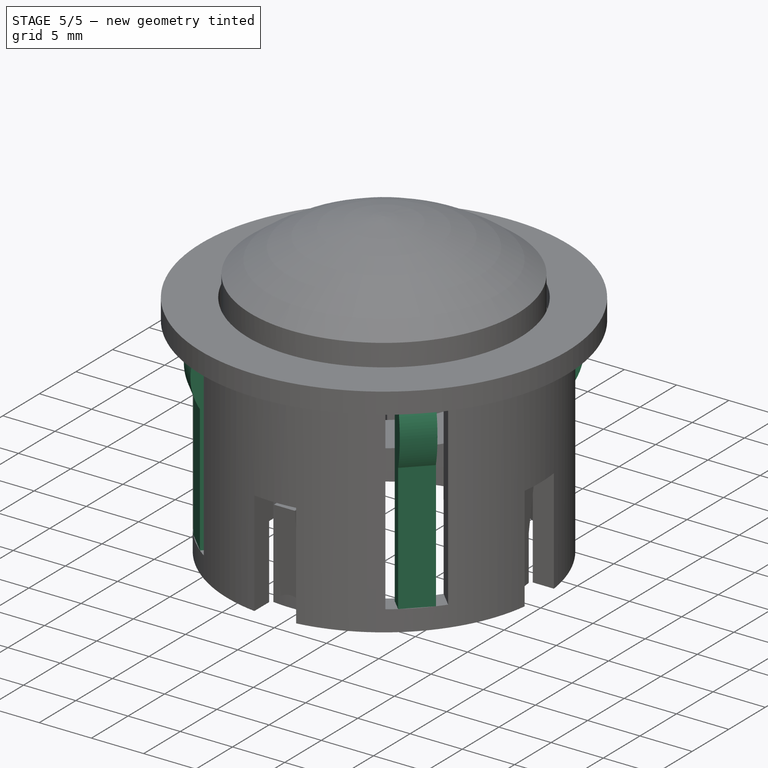
[diagram: stage 5 of 5 — iso view after this stage's code; geometry added in this stage tinted green]
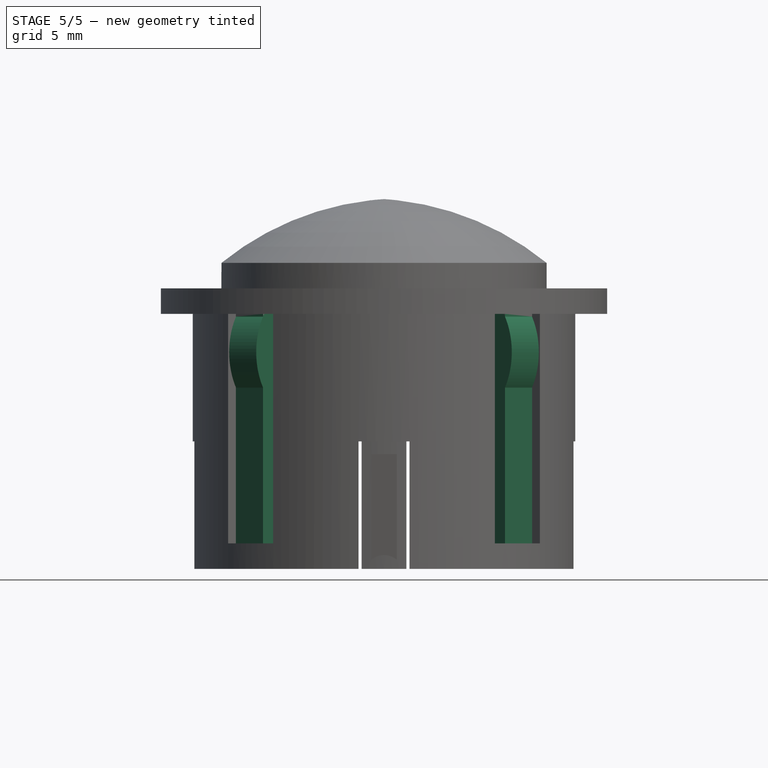
[diagram: stage 5 of 5 — front view after this stage's code; geometry added in this stage tinted green]
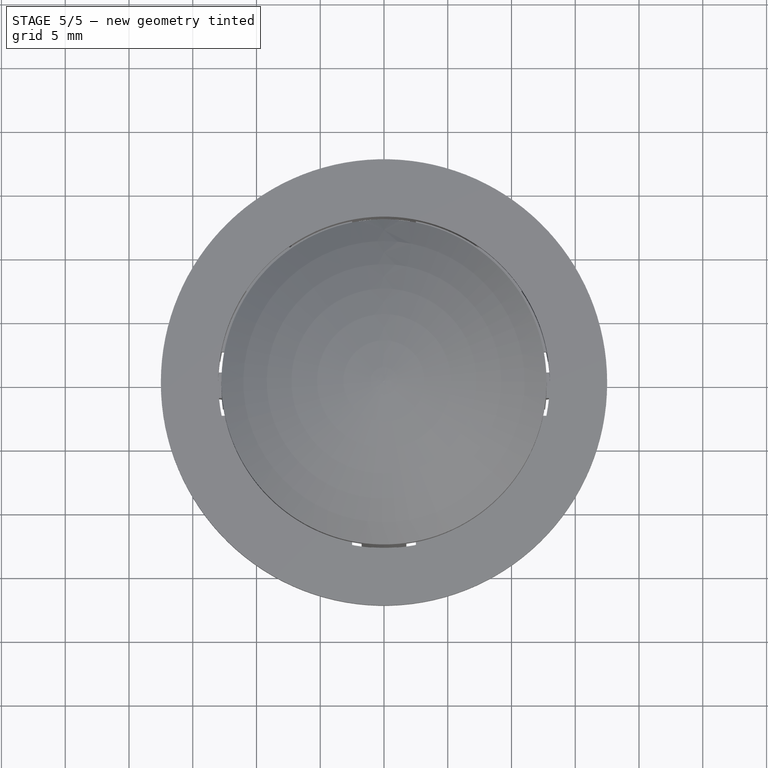
[diagram: stage 5 of 5 — top view after this stage's code; geometry added in this stage tinted green]
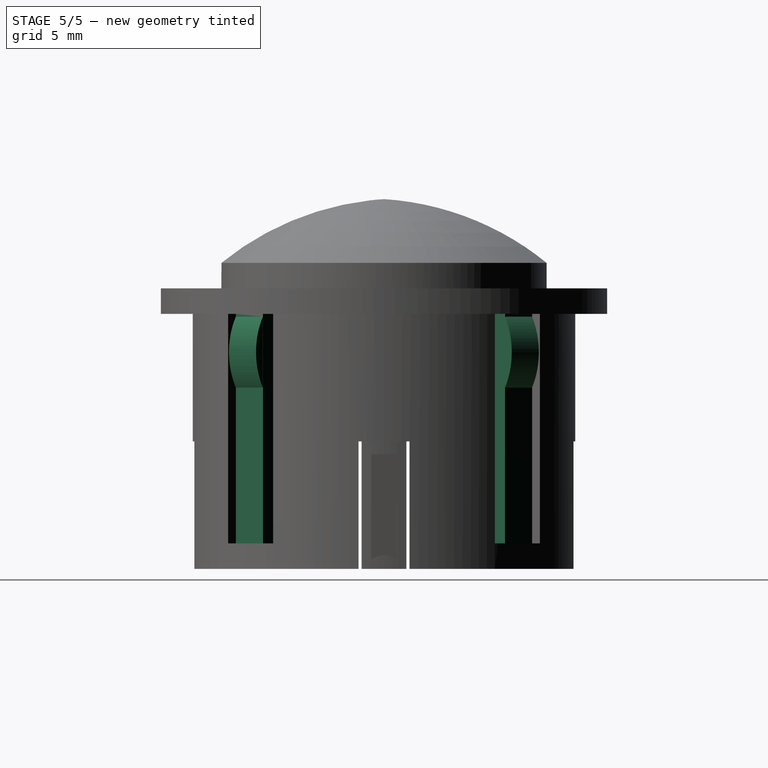
[diagram: stage 5 of 5 — right view after this stage's code; geometry added in this stage tinted green]
FEATURE [Sketcher::SketchObject] Sketch018
  ExternalGeometry = -> [Pocket005]
  FullyConstrained = true
  MapMode = 5
  Placement = pos=(0,0,-18) rot=(0,0,1;0rad)
  Support = -> [Pocket005]
  sketch-geometry (16):
    g0: LineSegment StartX=-11.6198 StartY=9.48579 StartZ=0 EndX=-10.5591 EndY=8.42513 EndZ=0
    g1: LineSegment StartX=-10.5591 StartY=8.42513 StartZ=0 EndX=-8.42513 EndY=10.5591 EndZ=0
    g2: LineSegment StartX=-8.42513 StartY=10.5591 StartZ=0 EndX=-9.48579 EndY=11.6198 EndZ=0
    g3: LineSegment StartX=-9.48579 StartY=11.6198 StartZ=0 EndX=-11.6198 EndY=9.48579 EndZ=0
    g4: LineSegment StartX=9.48579 StartY=11.6198 StartZ=0 EndX=8.42513 EndY=10.5591 EndZ=0
    g5: LineSegment StartX=8.42513 StartY=10.5591 StartZ=0 EndX=10.5591 EndY=8.42513 EndZ=0
    g6: LineSegment StartX=10.5591 StartY=8.42513 StartZ=0 EndX=11.6198 EndY=9.48579 EndZ=0
    g7: LineSegment StartX=11.6198 StartY=9.48579 StartZ=0 EndX=9.48579 EndY=11.6198 EndZ=0
    g8: LineSegment StartX=11.6198 StartY=-9.48579 StartZ=0 EndX=10.5591 EndY=-8.42513 EndZ=0
    g9: LineSegment StartX=10.5591 StartY=-8.42513 StartZ=0 EndX=8.42513 EndY=-10.5591 EndZ=0
    g10: LineSegment StartX=8.42513 StartY=-10.5591 StartZ=0 EndX=9.48579 EndY=-11.6198 EndZ=0
    g11: LineSegment StartX=9.48579 StartY=-11.6198 StartZ=0 EndX=11.6198 EndY=-9.48579 EndZ=0
    g12: LineSegment StartX=-11.6198 StartY=-9.48579 StartZ=0 EndX=-10.5591 EndY=-8.42513 EndZ=0
    g13: LineSegment StartX=-10.5591 StartY=-8.42513 StartZ=0 EndX=-8.42513 EndY=-10.5591 EndZ=0
    g14: LineSegment StartX=-8.42513 StartY=-10.5591 StartZ=0 EndX=-9.48579 EndY=-11.6198 EndZ=0
    g15: LineSegment StartX=-9.48579 StartY=-11.6198 StartZ=0 EndX=-11.6198 EndY=-9.48579 EndZ=0
  constraints (48):
    c: PointOnObject(g0,g-5)
    c: Coincident(g1,g0)
    c: Coincident(g2,g1)
    c: PointOnObject(g2,g-5)
    c: Coincident(g3,g2)
    c: Coincident(g3,g0)
    c: Distance(g0,g-5) = 1
    c: Parallel(g2,g0)
    c: Parallel(g3,g1)
    c: Distance(g1,g2) = 1.5
    c: Angle(g-1,g0) = 2.35619
    c: Distance(g2,g-5) = 1
    c: PointOnObject(g4,g-3)
    c: Coincident(g5,g4)
    c: Coincident(g6,g5)
    c: PointOnObject(g6,g-3)
    c: Coincident(g7,g6)
    c: Coincident(g7,g4)
    c: Parallel(g7,g5)
    c: Parallel(g4,g6)
    c: Distance(g4,g-3) = 1
    c: Distance(g-3,g6) = 1
    c: Distance(g6) = 1.5
    c: Angle(g-1,g6) = 0.785398
    c: PointOnObject(g8,g-7)
    c: Coincident(g9,g8)
    c: Coincident(g10,g9)
    c: PointOnObject(g10,g-7)
    c: Coincident(g11,g10)
    c: Coincident(g11,g8)
    c: Parallel(g8,g10)
    c: Parallel(g9,g11)
    c: Distance(g8,g-7) = 1
    c: Distance(g10,g-7) = 1
    c: Distance(g10) = 1.5
    c: Angle(g8,g-1) = 0.785398
    c: PointOnObject(g12,g-6)
    c: Coincident(g13,g12)
    c: Coincident(g14,g13)
    c: PointOnObject(g14,g-6)
    c: Coincident(g15,g14)
    c: Coincident(g15,g12)
    c: Parallel(g14,g12)
    c: Parallel(g13,g15)
    c: Distance(g14,g-6) = 1
    c: Distance(g12,g-6) = 1
    c: Distance(g12) = 1.5
    c: Angle(g14,g-1) = 2.35619
FEATURE [PartDesign::Pad] Pad009
  BaseFeature = -> Pocket005
  Direction = (0,0,1)
  Length = 18
  Length2 = 10
  Profile = -> Sketch018
  ReferenceAxis = -> Sketch018 [N_Axis]
  Type = 0
FEATURE [Sketcher::SketchObject] Sketch019
  ExternalGeometry = -> [Pad009]
  FullyConstrained = true
  MapMode = 5
  Placement = pos=(1.06701,-1.06701,0) rot=(0.862856,0.357407,0.357407;1.71777rad)
  Support = -> [Pad009]
  sketch-geometry (4):
    g0: LineSegment StartX=-14.7902 StartY=-6.83e-13 StartZ=0 EndX=-14.7902 EndY=-6 EndZ=0
    g1: LineSegment StartX=14.7902 StartY=-6.95e-13 StartZ=0 EndX=14.7902 EndY=-6 EndZ=0
    g2: ArcOfCircle CenterX=-10.1804 CenterY=-3 CenterZ=0 NormalX=0 NormalY=0 NormalZ=1 AngleXU=0 Radius=5.5 StartAngle=2.56466 EndAngle=3.71852
    g3: ArcOfCircle CenterX=10.1804 CenterY=-3 CenterZ=0 NormalX=0 NormalY=0 NormalZ=1 AngleXU=0 Radius=5.5 StartAngle=5.70625 EndAngle=6.86012
  constraints (12):
    c: Coincident(g0,g-4)
    c: PointOnObject(g0,g-4)
    c: Coincident(g1,g-3)
    c: PointOnObject(g1,g-3)
    c: Distance(g0) = 6
    c: Coincident(g2,g0)
    c: Coincident(g2,g0)
    c: Coincident(g3,g1)
    c: Coincident(g3,g1)
    c: Equal(g1,g0)
    c: Equal(g3,g2)
    c: Diameter(g3) = 11
FEATURE [PartDesign::Pad] Pad010
  BaseFeature = -> Pad009
  Direction = (0.707107,-0.707107,0)
  Length = 3
  Length2 = 10
  Profile = -> Sketch019
  ReferenceAxis = -> Sketch019 [N_Axis]
  Reversed = true
  Type = 0
FEATURE [Sketcher::SketchObject] Sketch020
  ExternalGeometry = -> [Pad010]
  FullyConstrained = true
  MapMode = 5
  Placement = pos=(-1.06701,-1.06701,0) rot=(0.862856,-0.357407,-0.357407;1.71777rad)
  Support = -> [Pad010]
  sketch-geometry (4):
    g0: LineSegment StartX=-14.7902 StartY=-2.68772e-11 StartZ=0 EndX=-14.7902 EndY=-6 EndZ=0
    g1: LineSegment StartX=14.7902 StartY=-2.68785e-11 StartZ=0 EndX=14.7902 EndY=-6 EndZ=0
    g2: ArcOfCircle CenterX=-10.1804 CenterY=-3 CenterZ=0 NormalX=0 NormalY=0 NormalZ=1 AngleXU=0 Radius=5.5 StartAngle=2.56466 EndAngle=3.71852
    g3: ArcOfCircle CenterX=10.1804 CenterY=-3 CenterZ=0 NormalX=0 NormalY=0 NormalZ=1 AngleXU=0 Radius=5.5 StartAngle=5.70625 EndAngle=6.86012
  constraints (12):
    c: Coincident(g0,g-3)
    c: PointOnObject(g0,g-3)
    c: Coincident(g1,g-4)
    c: PointOnObject(g1,g-4)
    c: Equal(g0,g1)
    c: Distance(g0) = 6
    c: Coincident(g2,g0)
    c: Coincident(g2,g0)
    c: Coincident(g3,g1)
    c: Coincident(g3,g1)
    c: Equal(g3,g2)
    c: Diameter(g3) = 11
FEATURE [PartDesign::Pad] Pad011
  BaseFeature = -> Pad010
  Direction = (-0.707107,-0.707107,1e-16)
  Length = 3
  Length2 = 10
  Profile = -> Sketch020
  ReferenceAxis = -> Sketch020 [N_Axis]
  Reversed = true
  Type = 0
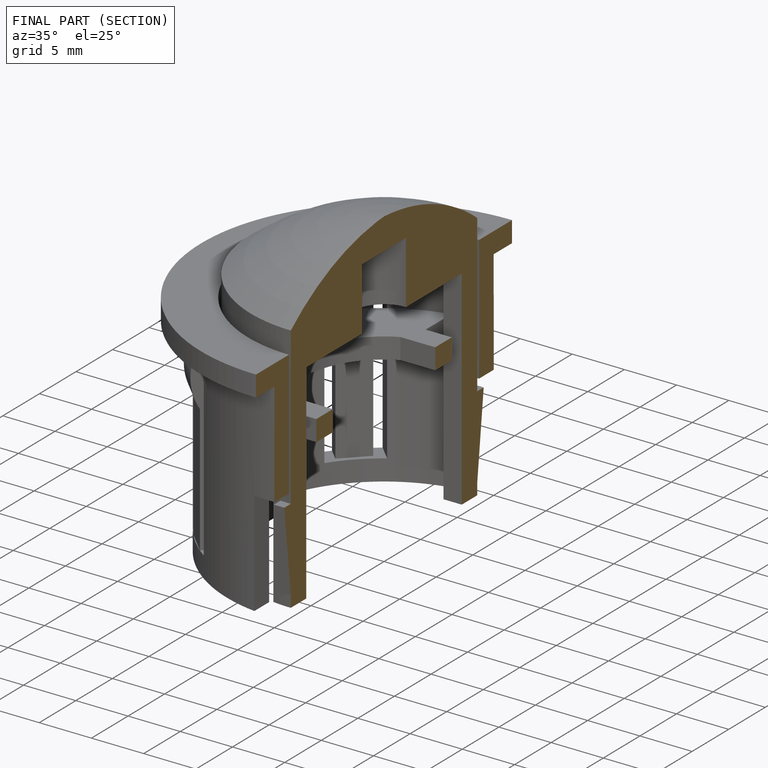
[diagram: finished part — half-section view (interior)]
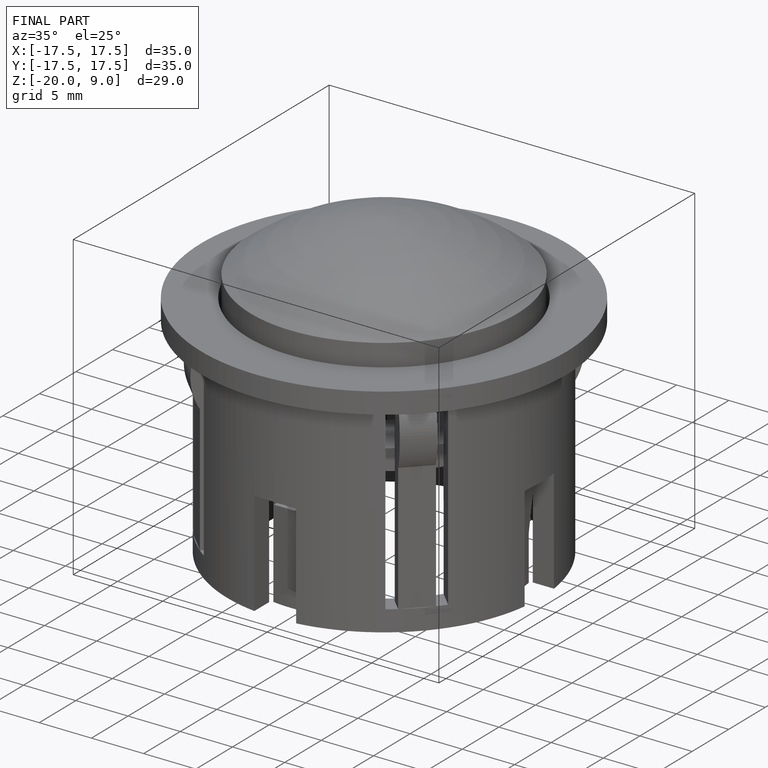
[diagram: finished part — iso view with bounding-box wireframe]
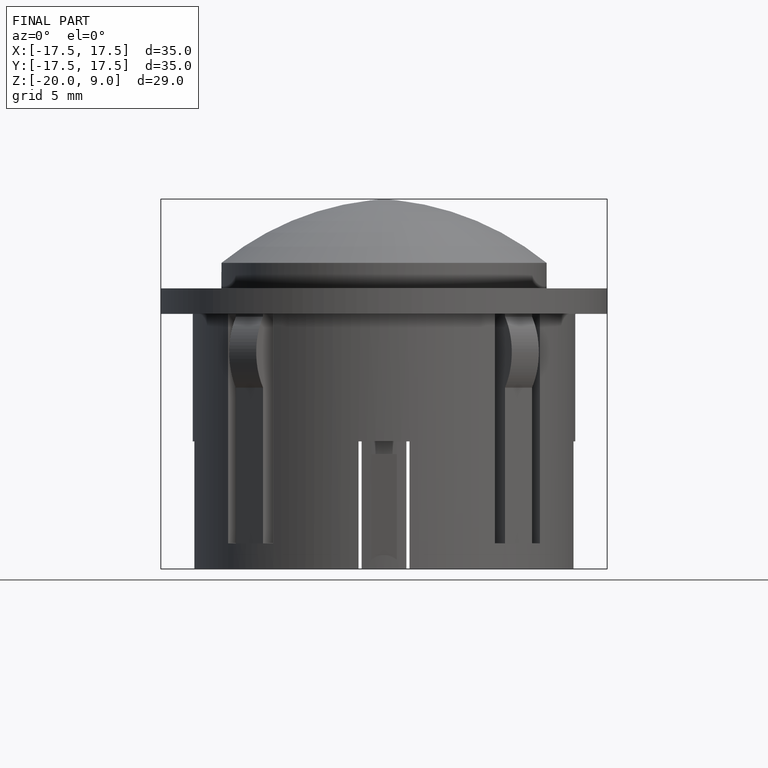
[diagram: finished part — front view with bounding-box wireframe]
